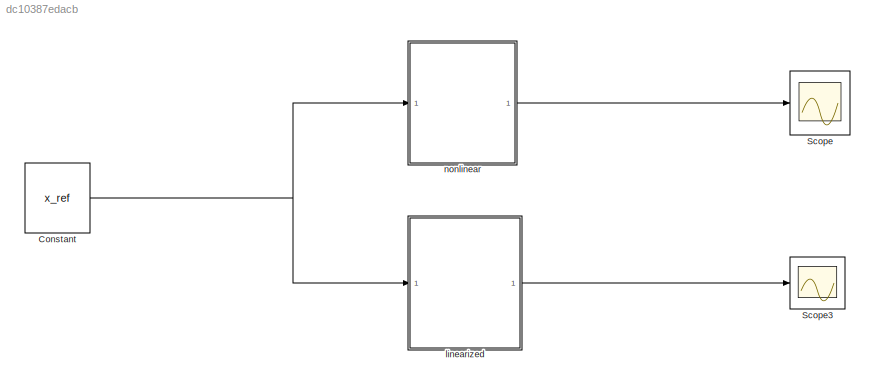
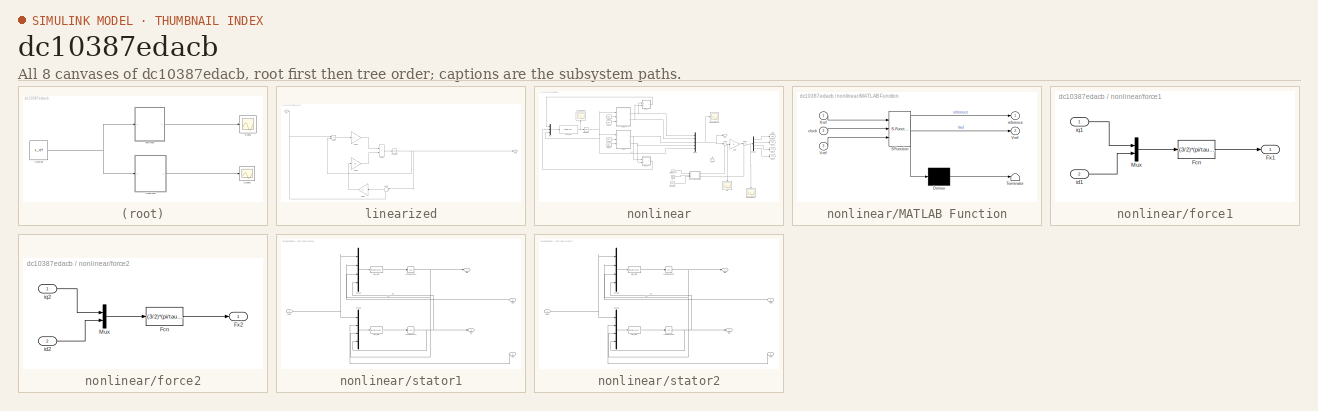
[diagram: thumbnail index - all 8 canvases of the model, root first then tree order]
MODEL slx_dc10387edacb
KIND model
CONFIG AbsTol = auto
CONFIG EnableMultiTasking = off
CONFIG FixedStep = auto
CONFIG MaxStep = auto
CONFIG MinStep = auto
CONFIG RelTol = 1e-3
CONFIG SampleTimeConstraint = Unconstrained
CONFIG Solver = VariableStepAuto
CONFIG SolverName = VariableStepAuto
CONFIG StartTime = 0.0
CONFIG StopTime = 800
BLOCK [Constant] Constant
  Value = x_ref
BLOCK [Scope] Scope
  Floating = off
  NumInputPorts = 1
  Ports = [1]
  ScopeSpecificationString = Simulink.scopes.TimeScopeBlockCfg('CurrentConfiguration', extmgr.ConfigurationSet(extmgr.Configuration('Core','General UI',true),extmgr.Configuration('Core','Source UI',true),extmgr.Configuration('Sources','WiredSimulink',true),extmgr.Configuration('Visuals','Time Domain',true,'SerializedDisplays',{struct('MinYLimReal','-192.85412','MaxYLimReal','557.13571','YLabelReal','','MinYLimMag',' 0.00000',...<+1613ch>
BLOCK [Scope] Scope3
  Floating = off
  NumInputPorts = 1
  Ports = [1]
  ScopeSpecificationString = Simulink.scopes.TimeScopeBlockCfg('CurrentConfiguration', extmgr.ConfigurationSet(extmgr.Configuration('Core','General UI',true),extmgr.Configuration('Core','Source UI',true),extmgr.Configuration('Sources','WiredSimulink',true,'DataLoggingVariableName','ScopeData2'),extmgr.Configuration('Visuals','Time Domain',true,'SerializedDisplays',{struct('MinYLimReal','-84.6422','MaxYLimReal','601.95205','YL...<+1624ch>
BLOCK [SubSystem] linearized
  Ports = [1, 1]
  RequestExecContextInheritance = off
BLOCK [Sum] linearized/Add2
  IconShape = rectangular
  Ports = [2, 1]
BLOCK [Sum] linearized/Add3
  IconShape = rectangular
  Inputs = -+
  Ports = [2, 1]
BLOCK [Gain] linearized/Gain4
  Gain = A
  Multiplication = Matrix(K*u)
BLOCK [Gain] linearized/Gain5
  Gain = B
  Multiplication = Matrix(K*u)
BLOCK [Gain] linearized/Gain6
  Gain = -K
  Multiplication = Matrix(K*u)
BLOCK [Inport] linearized/In1
BLOCK [Integrator] linearized/Integrator2
  InitialCondition = [0;0;0;0;0]
  Ports = [1, 1]
BLOCK [Outport] linearized/Out1
BLOCK [Sum] linearized/Sum1
  Inputs = |+-
  Ports = [2, 1]
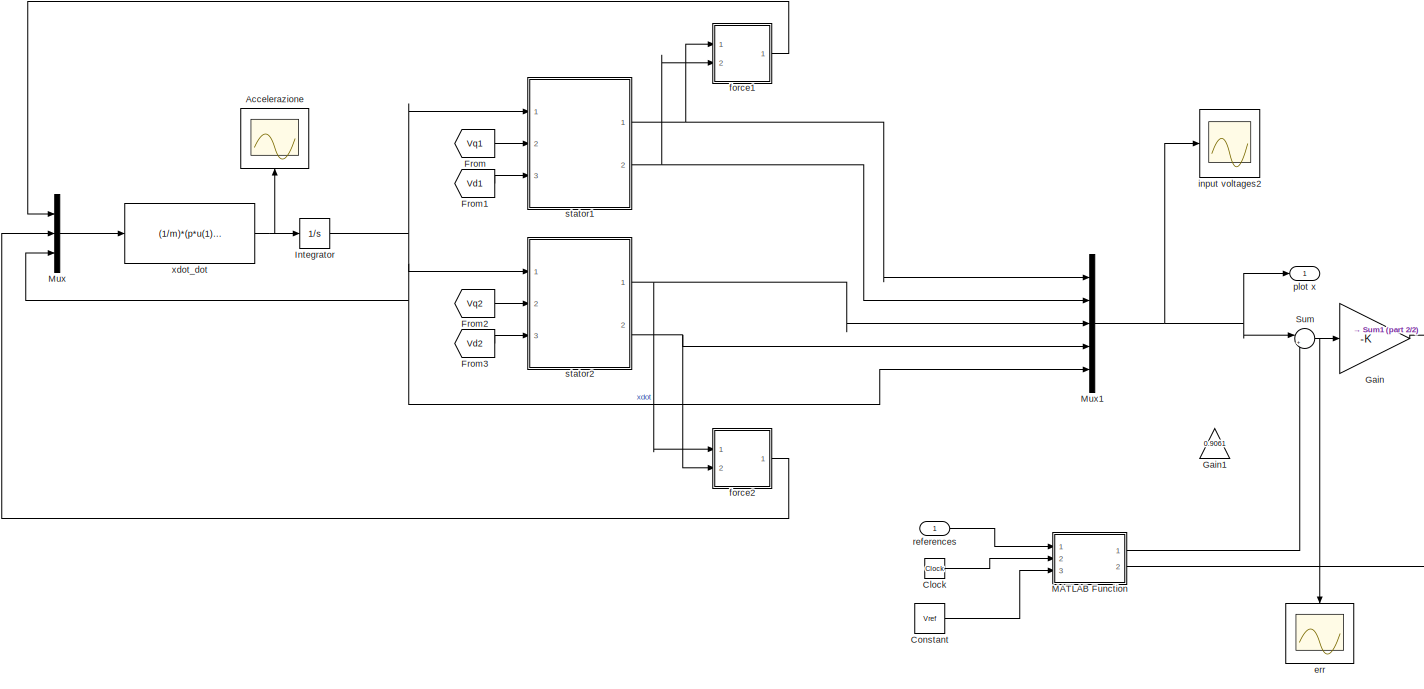
[diagram: nonlinear - part 1/2, most of the canvas]
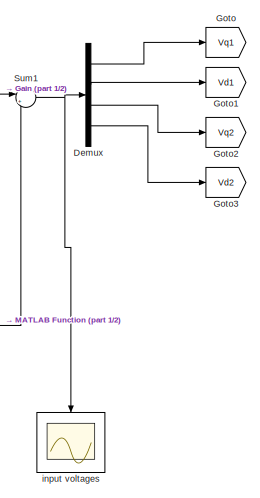
[diagram: nonlinear - part 2/2, bottom right region]
BLOCK [SubSystem] nonlinear
  Ports = [1, 1]
  RequestExecContextInheritance = off
BLOCK [Scope] nonlinear/Accelerazione
  Floating = off
  NameLocation = right
  NumInputPorts = 1
  Ports = [1]
  ScopeSpecificationString = Simulink.scopes.TimeScopeBlockCfg('CurrentConfiguration', extmgr.ConfigurationSet(extmgr.Configuration('Core','General UI',true),extmgr.Configuration('Core','Source UI',true),extmgr.Configuration('Sources','WiredSimulink',true,'DataLoggingVariableName','ScopeData1'),extmgr.Configuration('Visuals','Time Domain',true,'SerializedDisplays',{struct('MinYLimReal','-0.52901','MaxYLimReal','5.03514','YLab...<+1505ch>
BLOCK [Clock] nonlinear/Clock
BLOCK [Constant] nonlinear/Constant
  Value = Vref
BLOCK [Demux] nonlinear/Demux
  Ports = [1, 4]
BLOCK [From] nonlinear/From
  GotoTag = Vq1
BLOCK [From] nonlinear/From1
  GotoTag = Vd1
BLOCK [From] nonlinear/From2
  GotoTag = Vq2
BLOCK [From] nonlinear/From3
  GotoTag = Vd2
BLOCK [Gain] nonlinear/Gain
  Gain = -K
  Multiplication = Matrix(K*u)
BLOCK [Gain] nonlinear/Gain1
  Gain = 0.9061
  NameLocation = right
BLOCK [Goto] nonlinear/Goto
  GotoTag = Vq1
BLOCK [Goto] nonlinear/Goto1
  GotoTag = Vd1
BLOCK [Goto] nonlinear/Goto2
  GotoTag = Vq2
BLOCK [Goto] nonlinear/Goto3
  GotoTag = Vd2
BLOCK [Integrator] nonlinear/Integrator
  Ports = [1, 1]
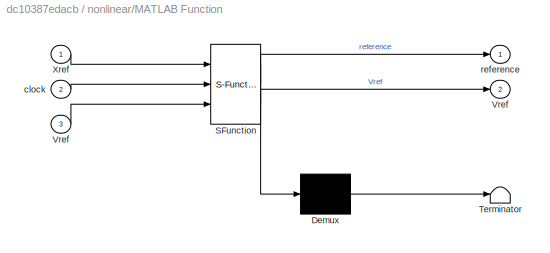
BLOCK [SubSystem] nonlinear/MATLAB Function
  ErrorFcn = Stateflow.Translate.translate
  PermitHierarchicalResolution = ExplicitOnly
  Ports = [3, 2]
  RequestExecContextInheritance = off
  SFBlockType = MATLAB Function
  TreatAsAtomicUnit = on
BLOCK [Demux] nonlinear/MATLAB Function/ Demux 
  Outputs = 1
  Ports = [1, 1]
BLOCK [S-Function] nonlinear/MATLAB Function/ SFunction 
  EnableBusSupport = on
  FunctionName = sf_sfun
  PortCounts = [3 3]
  Ports = [3, 3]
  SFcnIsStateOwnerBlock = off
  SFunctionDeploymentMode = off
  Tag = Stateflow S-Function 2
BLOCK [Terminator] nonlinear/MATLAB Function/ Terminator 
BLOCK [Outport] nonlinear/MATLAB Function/Vref
  Port = 2
BLOCK [Inport] nonlinear/MATLAB Function/Vref 
  Port = 3
BLOCK [Inport] nonlinear/MATLAB Function/Xref
BLOCK [Inport] nonlinear/MATLAB Function/clock
  Port = 2
BLOCK [Outport] nonlinear/MATLAB Function/reference
BLOCK [Mux] nonlinear/Mux
  DisplayOption = bar
  Inputs = 3
  Ports = [3, 1]
BLOCK [Mux] nonlinear/Mux1
  DisplayOption = bar
  Inputs = 5
  Ports = [5, 1]
BLOCK [Sum] nonlinear/Sum
  Inputs = |+-
  Ports = [2, 1]
BLOCK [Sum] nonlinear/Sum1
  Inputs = |++
  Ports = [2, 1]
BLOCK [Scope] nonlinear/err
  Floating = off
  NameLocation = left
  NumInputPorts = 1
  Ports = [1]
  ScopeSpecificationString = Simulink.scopes.TimeScopeBlockCfg('CurrentConfiguration', extmgr.ConfigurationSet(extmgr.Configuration('Core','General UI',true),extmgr.Configuration('Core','Source UI',true),extmgr.Configuration('Sources','WiredSimulink',true,'DataLoggingVariableName','ScopeData1'),extmgr.Configuration('Visuals','Time Domain',true,'SerializedDisplays',{struct('MinYLimReal','-193.66451','MaxYLimReal','557.22576','...<+1650ch>
BLOCK [SubSystem] nonlinear/force1
  Ports = [2, 1]
  RequestExecContextInheritance = off
BLOCK [Fcn] nonlinear/force1/Fcn
  Expr = (3/2)*(pi/tau)*(Ld*((M/Ld)*i_e) + (Ld-Lq)*u(2))*u(1)
BLOCK [Outport] nonlinear/force1/Fx1
BLOCK [Mux] nonlinear/force1/Mux
  DisplayOption = bar
  Inputs = 2
  Ports = [2, 1]
BLOCK [Inport] nonlinear/force1/id1
  Port = 2
BLOCK [Inport] nonlinear/force1/iq1 
BLOCK [SubSystem] nonlinear/force2
  Ports = [2, 1]
  RequestExecContextInheritance = off
BLOCK [Fcn] nonlinear/force2/Fcn
  Expr = (3/2)*(pi/tau)*(Ld*((M/Ld)*i_e) + (Ld-Lq)*u(2))*u(1)
BLOCK [Outport] nonlinear/force2/Fx2
BLOCK [Mux] nonlinear/force2/Mux
  DisplayOption = bar
  Inputs = 2
  Ports = [2, 1]
BLOCK [Inport] nonlinear/force2/id2
  Port = 2
BLOCK [Inport] nonlinear/force2/iq2 
BLOCK [Scope] nonlinear/input voltages
  Floating = off
  NameLocation = left
  NumInputPorts = 1
  Ports = [1]
  ScopeSpecificationString = Simulink.scopes.TimeScopeBlockCfg('CurrentConfiguration', extmgr.ConfigurationSet(extmgr.Configuration('Core','General UI',true),extmgr.Configuration('Core','Source UI',true),extmgr.Configuration('Sources','WiredSimulink',true,'DataLoggingVariableName','ScopeData1'),extmgr.Configuration('Visuals','Time Domain',true,'SerializedDisplays',{struct('MinYLimReal','-25550.10493','MaxYLimReal','17606.4911...<+1610ch>
BLOCK [Scope] nonlinear/input voltages2
  Floating = off
  NumInputPorts = 1
  Ports = [1]
  ScopeSpecificationString = Simulink.scopes.TimeScopeBlockCfg('CurrentConfiguration', extmgr.ConfigurationSet(extmgr.Configuration('Core','General UI',true),extmgr.Configuration('Core','Source UI',true),extmgr.Configuration('Sources','WiredSimulink',true,'DataLoggingVariableName','ScopeData1'),extmgr.Configuration('Visuals','Time Domain',true,'SerializedDisplays',{struct('MinYLimReal','-191.44128','MaxYLimReal','584.57678','...<+1699ch>
BLOCK [Outport] nonlinear/plot x
BLOCK [Inport] nonlinear/references
BLOCK [SubSystem] nonlinear/stator1
  Ports = [3, 2]
  RequestExecContextInheritance = off
BLOCK [Integrator] nonlinear/stator1/Integrator1
  InitialCondition = iq1_ref
  Ports = [1, 1]
BLOCK [Integrator] nonlinear/stator1/Integrator2
  InitialCondition = id1_ref
  Ports = [1, 1]
BLOCK [Mux] nonlinear/stator1/Mux2
  DisplayOption = bar
  Ports = [4, 1]
BLOCK [Mux] nonlinear/stator1/Mux3
  DisplayOption = bar
  Ports = [4, 1]
BLOCK [Inport] nonlinear/stator1/Vd1
  Port = 3
BLOCK [Inport] nonlinear/stator1/Vq1
  Port = 2
BLOCK [Outport] nonlinear/stator1/id1
  Port = 2
BLOCK [Fcn] nonlinear/stator1/id1_dot
  Expr = -(R/Ld)*u(4) - (Lq/Ld)*(u(3))*u(1)*pi/tau + u(2)/Ld
BLOCK [Outport] nonlinear/stator1/iq1
BLOCK [Fcn] nonlinear/stator1/iq1_dot
  Expr = -(R/Lq)*u(3) + (Ld/Lq)*((M/Ld)*i_e + u(4))*u(1)*pi/tau + u(2)/Lq
BLOCK [Inport] nonlinear/stator1/xdot
BLOCK [SubSystem] nonlinear/stator2
  Ports = [3, 2]
  RequestExecContextInheritance = off
BLOCK [Integrator] nonlinear/stator2/Integrator1
  InitialCondition = iq2_ref
  Ports = [1, 1]
BLOCK [Integrator] nonlinear/stator2/Integrator2
  InitialCondition = id2_ref
  Ports = [1, 1]
BLOCK [Mux] nonlinear/stator2/Mux2
  DisplayOption = bar
  Ports = [4, 1]
BLOCK [Mux] nonlinear/stator2/Mux3
  DisplayOption = bar
  Ports = [4, 1]
BLOCK [Inport] nonlinear/stator2/Vd2
  Port = 3
BLOCK [Inport] nonlinear/stator2/Vq2
  Port = 2
BLOCK [Outport] nonlinear/stator2/id2
  Port = 2
BLOCK [Fcn] nonlinear/stator2/id2_dot
  Expr = -(R/Ld)*u(4) - (Lq/Ld)*(u(3))*u(1)*pi/tau + u(2)/Ld
BLOCK [Outport] nonlinear/stator2/iq2
BLOCK [Fcn] nonlinear/stator2/iq2_dot
  Expr = -(R/Lq)*u(3) + (Ld/Lq)*((M/Ld)*i_e + u(4))*u(1)*pi/tau + u(2)/Lq
BLOCK [Inport] nonlinear/stator2/xdot
BLOCK [Fcn] nonlinear/xdot_dot
  Expr = (1/m)*(p*u(1) + p*u(2) - (rho*Sa*Cd/2)*u(3)^2)
NET Constant:1 -> linearized:1, nonlinear:1
LINE linearized/Add2:1 -> linearized/Integrator2:1
LINE linearized/Add3:1 -> linearized/Gain4:1
LINE linearized/Gain4:1 -> linearized/Add2:1
LINE linearized/Gain5:1 -> linearized/Add2:2
LINE linearized/Gain6:1 -> linearized/Gain5:1
NET linearized/In1:1 -> linearized/Add3:1, linearized/Sum1:2
NET linearized/Integrator2:1 -> linearized/Add3:2, linearized/Out1:1, linearized/Sum1:1
LINE linearized/Sum1:1 -> linearized/Gain6:1
LINE linearized:1 -> Scope3:1
LINE nonlinear/Clock:1 -> nonlinear/MATLAB Function:2
LINE nonlinear/Constant:1 -> nonlinear/MATLAB Function:3
LINE nonlinear/Demux:1 -> nonlinear/Goto:1
LINE nonlinear/Demux:2 -> nonlinear/Goto1:1
LINE nonlinear/Demux:3 -> nonlinear/Goto2:1
LINE nonlinear/Demux:4 -> nonlinear/Goto3:1
LINE nonlinear/From1:1 -> nonlinear/stator1:3
LINE nonlinear/From2:1 -> nonlinear/stator2:2
LINE nonlinear/From3:1 -> nonlinear/stator2:3
LINE nonlinear/From:1 -> nonlinear/stator1:2
LINE nonlinear/Gain:1 -> nonlinear/Sum1:1
NET nonlinear/Integrator:1 -> nonlinear/Mux1:5, nonlinear/Mux:3, nonlinear/stator1:1, nonlinear/stator2:1
LINE nonlinear/MATLAB Function:1 -> nonlinear/Sum:2
LINE nonlinear/MATLAB Function:2 -> nonlinear/Sum1:2
NET nonlinear/Mux1:1 -> nonlinear/Sum:1, nonlinear/input voltages2:1, nonlinear/plot x:1
LINE nonlinear/Mux:1 -> nonlinear/xdot_dot:1
NET nonlinear/Sum1:1 -> nonlinear/Demux:1, nonlinear/input voltages:1
NET nonlinear/Sum:1 -> nonlinear/Gain:1, nonlinear/err:1
LINE nonlinear/force1/Fcn:1 -> nonlinear/force1/Fx1:1
LINE nonlinear/force1/Mux:1 -> nonlinear/force1/Fcn:1
LINE nonlinear/force1/id1:1 -> nonlinear/force1/Mux:2
LINE nonlinear/force1/iq1 :1 -> nonlinear/force1/Mux:1
LINE nonlinear/force1:1 -> nonlinear/Mux:1
LINE nonlinear/force2/Fcn:1 -> nonlinear/force2/Fx2:1
LINE nonlinear/force2/Mux:1 -> nonlinear/force2/Fcn:1
LINE nonlinear/force2/id2:1 -> nonlinear/force2/Mux:2
LINE nonlinear/force2/iq2 :1 -> nonlinear/force2/Mux:1
LINE nonlinear/force2:1 -> nonlinear/Mux:2
LINE nonlinear/references:1 -> nonlinear/MATLAB Function:1
NET nonlinear/stator1/Integrator1:1 -> nonlinear/stator1/Mux2:3, nonlinear/stator1/Mux3:3, nonlinear/stator1/iq1:1
NET nonlinear/stator1/Integrator2:1 -> nonlinear/stator1/Mux2:4, nonlinear/stator1/Mux3:4, nonlinear/stator1/id1:1
LINE nonlinear/stator1/Mux2:1 -> nonlinear/stator1/iq1_dot:1
LINE nonlinear/stator1/Mux3:1 -> nonlinear/stator1/id1_dot:1
LINE nonlinear/stator1/Vd1:1 -> nonlinear/stator1/Mux3:2
LINE nonlinear/stator1/Vq1:1 -> nonlinear/stator1/Mux2:2
LINE nonlinear/stator1/id1_dot:1 -> nonlinear/stator1/Integrator2:1
LINE nonlinear/stator1/iq1_dot:1 -> nonlinear/stator1/Integrator1:1
NET nonlinear/stator1/xdot:1 -> nonlinear/stator1/Mux2:1, nonlinear/stator1/Mux3:1
NET nonlinear/stator1:1 -> nonlinear/Mux1:1, nonlinear/force1:1
NET nonlinear/stator1:2 -> nonlinear/Mux1:2, nonlinear/force1:2
NET nonlinear/stator2/Integrator1:1 -> nonlinear/stator2/Mux2:3, nonlinear/stator2/Mux3:3, nonlinear/stator2/iq2:1
NET nonlinear/stator2/Integrator2:1 -> nonlinear/stator2/Mux2:4, nonlinear/stator2/Mux3:4, nonlinear/stator2/id2:1
LINE nonlinear/stator2/Mux2:1 -> nonlinear/stator2/iq2_dot:1
LINE nonlinear/stator2/Mux3:1 -> nonlinear/stator2/id2_dot:1
LINE nonlinear/stator2/Vd2:1 -> nonlinear/stator2/Mux3:2
LINE nonlinear/stator2/Vq2:1 -> nonlinear/stator2/Mux2:2
LINE nonlinear/stator2/id2_dot:1 -> nonlinear/stator2/Integrator2:1
LINE nonlinear/stator2/iq2_dot:1 -> nonlinear/stator2/Integrator1:1
NET nonlinear/stator2/xdot:1 -> nonlinear/stator2/Mux2:1, nonlinear/stator2/Mux3:1
NET nonlinear/stator2:1 -> nonlinear/Mux1:3, nonlinear/force2:1
NET nonlinear/stator2:2 -> nonlinear/Mux1:4, nonlinear/force2:2
NET nonlinear/xdot_dot:1 -> nonlinear/Accelerazione:1, nonlinear/Integrator:1
LINE nonlinear:1 -> Scope:1
note: NET lines group one-source signal fan-out (src -> all destinations, sorted); 1:1 wires keep LINE
CHART nonlinear/MATLAB Function states=1 transitions=1
  STATE_LABEL 'eML_blk_kernel()'
  STATE_LABEL "SCRIPT:\nfunction [reference,Vref]= fcn(Xref,clock,Vref)\n%% Solo Accelerazione\n% steadyTime = 220; %più o meno come quello del paper mandato da luca. Comunque l'accelerazione sembra rimanere molto contenuta\n% t = clock;\n% \n% if t <= steadyTime\n%     ramp = (1/steadyTime)*t;\n% else\n%     ramp = 1;\n% end\n% \n% % reference(5)=reference(5)*ramp; % Questo fa crescere sotto forma di rampa\n% % solamente la...<+1367ch>"
CHART  states=0 transitions=0
